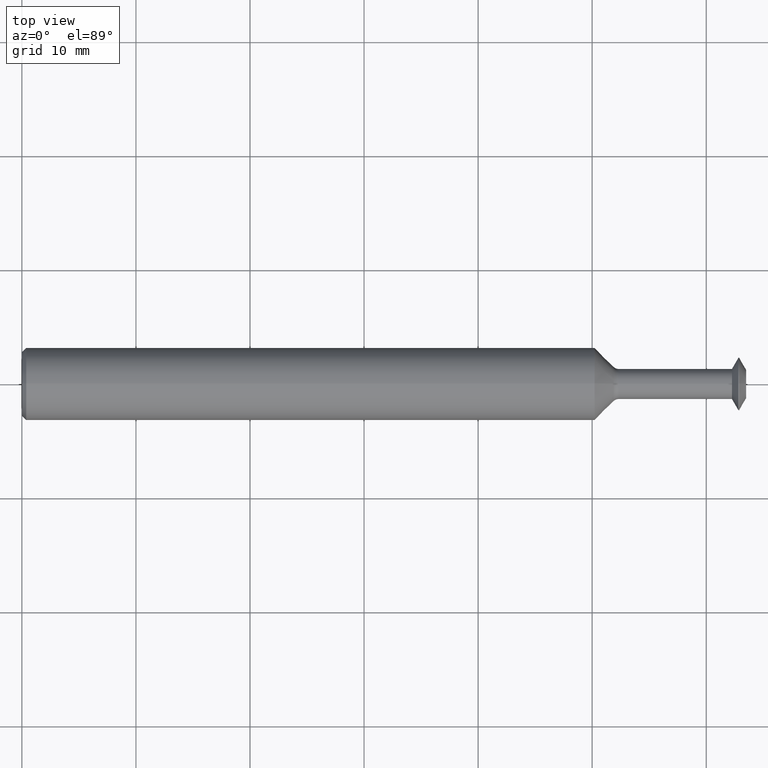
[diagram: clean part render]
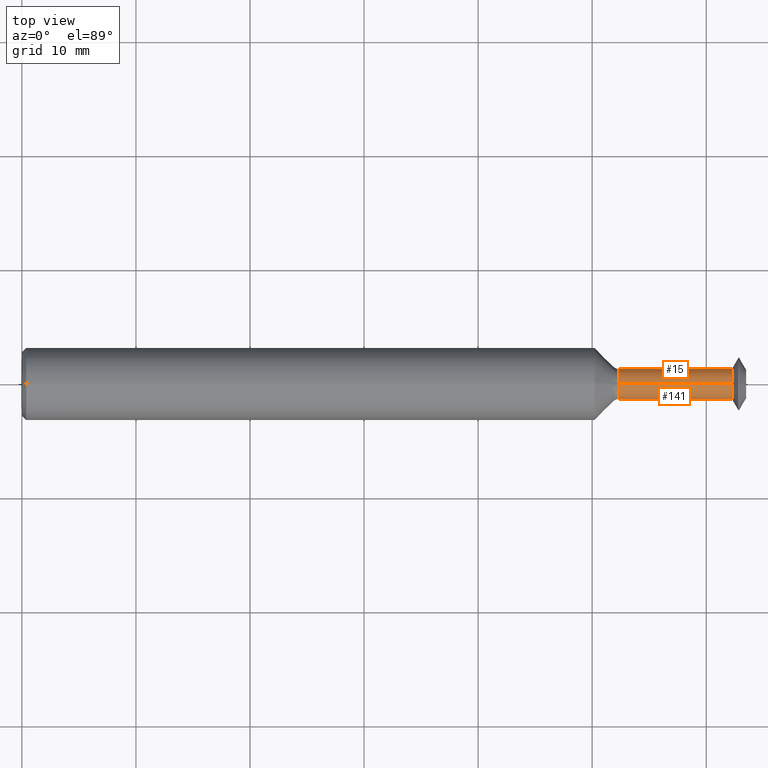
[diagram: same view with one multi-face feature highlighted, each face labeled with its STEP entity id]
A machine part, top view. The highlighted faces form ONE feature: a constant-radius fillet chain: 2 tangent blend faces with common blend radius 1.3208 mm. The faces share edges in the B-rep.
Their STEP definitions:
[1] entity #15 (Cylinder):
#2 = VERTEX_POINT ( 'NONE', #159 ) ;
#11 = DIRECTION ( 'NONE',  ( 0.0000000000000000000, 0.0000000000000000000, 1.000000000000000000 ) ) ;
#15 = ADVANCED_FACE ( 'NONE', ( #449 ), #332, .T. ) ;
#20 = VERTEX_POINT ( 'NONE', #122 ) ;
#38 = ORIENTED_EDGE ( 'NONE', *, *, #245, .F. ) ;
#72 = CARTESIAN_POINT ( 'NONE',  ( 2.451016945457063834, 0.0000000000000000000, 0.0000000000000000000 ) ) ;
#85 = DIRECTION ( 'NONE',  ( -1.000000000000000000, -0.0000000000000000000, -0.0000000000000000000 ) ) ;
#96 = VECTOR ( 'NONE', #226, 39.37007874015748143 ) ;
#102 = CARTESIAN_POINT ( 'NONE',  ( 0.0000000000000000000, 0.0000000000000000000, 0.0000000000000000000 ) ) ;
#110 = CARTESIAN_POINT ( 'NONE',  ( 2.060003014481508465, 0.0000000000000000000, 0.05200000000000015721 ) ) ;
#111 = VERTEX_POINT ( 'NONE', #331 ) ;
#115 = VECTOR ( 'NONE', #85, 39.37007874015748143 ) ;
#116 = DIRECTION ( 'NONE',  ( 0.0000000000000000000, 0.0000000000000000000, 1.000000000000000000 ) ) ;
#122 = CARTESIAN_POINT ( 'NONE',  ( 2.451016945457063834, 0.0000000000000000000, -0.05200000000000000455 ) ) ;
#139 = DIRECTION ( 'NONE',  ( -1.000000000000000000, -0.0000000000000000000, -0.0000000000000000000 ) ) ;
#154 = VERTEX_POINT ( 'NONE', #110 ) ;
#159 = CARTESIAN_POINT ( 'NONE',  ( 2.451016945457063834, 8.756224613903546798E-18, 0.05200000000000000455 ) ) ;
#167 = LINE ( 'NONE', #186, #96 ) ;
#186 = CARTESIAN_POINT ( 'NONE',  ( 0.0000000000000000000, 6.368163355566246458E-18, -0.05200000000000008088 ) ) ;
#189 = ORIENTED_EDGE ( 'NONE', *, *, #465, .F. ) ;
#210 = CARTESIAN_POINT ( 'NONE',  ( 2.060003014481508465, 0.0000000000000000000, 0.0000000000000000000 ) ) ;
#226 = DIRECTION ( 'NONE',  ( -1.000000000000000000, -0.0000000000000000000, -0.0000000000000000000 ) ) ;
#245 = EDGE_CURVE ( 'NONE', #154, #111, #384, .T. ) ;
#258 = LINE ( 'NONE', #498, #115 ) ;
#268 = DIRECTION ( 'NONE',  ( 0.0000000000000000000, 0.0000000000000000000, 1.000000000000000000 ) ) ;
#289 = AXIS2_PLACEMENT_3D ( 'NONE', #210, #437, #11 ) ;
#330 = EDGE_CURVE ( 'NONE', #2, #20, #408, .T. ) ;
#331 = CARTESIAN_POINT ( 'NONE',  ( 2.060003014481508465, 6.368163355566256473E-18, -0.05200000000000015721 ) ) ;
#332 = CYLINDRICAL_SURFACE ( 'NONE', #471, 0.05200000000000008088 ) ;
#334 = DIRECTION ( 'NONE',  ( -1.000000000000000000, -0.0000000000000000000, -0.0000000000000000000 ) ) ;
#345 = EDGE_CURVE ( 'NONE', #20, #111, #167, .T. ) ;
#352 = EDGE_LOOP ( 'NONE', ( #401, #411, #38, #189 ) ) ;
#384 = CIRCLE ( 'NONE', #289, 0.05200000000000015721 ) ;
#401 = ORIENTED_EDGE ( 'NONE', *, *, #330, .T. ) ;
#408 = CIRCLE ( 'NONE', #462, 0.05200000000000000455 ) ;
#411 = ORIENTED_EDGE ( 'NONE', *, *, #345, .T. ) ;
#437 = DIRECTION ( 'NONE',  ( -1.000000000000000000, -0.0000000000000000000, -0.0000000000000000000 ) ) ;
#449 = FACE_OUTER_BOUND ( 'NONE', #352, .T. ) ;
#462 = AXIS2_PLACEMENT_3D ( 'NONE', #72, #334, #116 ) ;
#465 = EDGE_CURVE ( 'NONE', #2, #154, #258, .T. ) ;
#471 = AXIS2_PLACEMENT_3D ( 'NONE', #102, #139, #268 ) ;
#498 = CARTESIAN_POINT ( 'NONE',  ( 0.0000000000000000000, 0.0000000000000000000, 0.05200000000000008088 ) ) ;
[2] entity #141 (Cylinder):
#2 = VERTEX_POINT ( 'NONE', #159 ) ;
#17 = DIRECTION ( 'NONE',  ( 0.0000000000000000000, 0.0000000000000000000, 1.000000000000000000 ) ) ;
#20 = VERTEX_POINT ( 'NONE', #122 ) ;
#21 = CARTESIAN_POINT ( 'NONE',  ( 2.060003014481508465, 0.0000000000000000000, 0.0000000000000000000 ) ) ;
#37 = AXIS2_PLACEMENT_3D ( 'NONE', #21, #391, #17 ) ;
#62 = FACE_OUTER_BOUND ( 'NONE', #205, .T. ) ;
#77 = CYLINDRICAL_SURFACE ( 'NONE', #214, 0.05200000000000008088 ) ;
#84 = AXIS2_PLACEMENT_3D ( 'NONE', #235, #486, #240 ) ;
#85 = DIRECTION ( 'NONE',  ( -1.000000000000000000, -0.0000000000000000000, -0.0000000000000000000 ) ) ;
#96 = VECTOR ( 'NONE', #226, 39.37007874015748143 ) ;
#110 = CARTESIAN_POINT ( 'NONE',  ( 2.060003014481508465, 0.0000000000000000000, 0.05200000000000015721 ) ) ;
#111 = VERTEX_POINT ( 'NONE', #331 ) ;
#115 = VECTOR ( 'NONE', #85, 39.37007874015748143 ) ;
#122 = CARTESIAN_POINT ( 'NONE',  ( 2.451016945457063834, 0.0000000000000000000, -0.05200000000000000455 ) ) ;
#128 = CIRCLE ( 'NONE', #37, 0.05200000000000015721 ) ;
#136 = CIRCLE ( 'NONE', #84, 0.05200000000000000455 ) ;
#141 = ADVANCED_FACE ( 'NONE', ( #62 ), #77, .T. ) ;
#154 = VERTEX_POINT ( 'NONE', #110 ) ;
#159 = CARTESIAN_POINT ( 'NONE',  ( 2.451016945457063834, 8.756224613903546798E-18, 0.05200000000000000455 ) ) ;
#167 = LINE ( 'NONE', #186, #96 ) ;
#170 = DIRECTION ( 'NONE',  ( -1.000000000000000000, -0.0000000000000000000, -0.0000000000000000000 ) ) ;
#178 = ORIENTED_EDGE ( 'NONE', *, *, #447, .T. ) ;
#181 = DIRECTION ( 'NONE',  ( 0.0000000000000000000, 0.0000000000000000000, 1.000000000000000000 ) ) ;
#186 = CARTESIAN_POINT ( 'NONE',  ( 0.0000000000000000000, 6.368163355566246458E-18, -0.05200000000000008088 ) ) ;
#205 = EDGE_LOOP ( 'NONE', ( #232, #178, #261, #439 ) ) ;
#214 = AXIS2_PLACEMENT_3D ( 'NONE', #413, #170, #181 ) ;
#226 = DIRECTION ( 'NONE',  ( -1.000000000000000000, -0.0000000000000000000, -0.0000000000000000000 ) ) ;
#232 = ORIENTED_EDGE ( 'NONE', *, *, #345, .F. ) ;
#235 = CARTESIAN_POINT ( 'NONE',  ( 2.451016945457063834, 0.0000000000000000000, 0.0000000000000000000 ) ) ;
#240 = DIRECTION ( 'NONE',  ( 0.0000000000000000000, 0.0000000000000000000, 1.000000000000000000 ) ) ;
#258 = LINE ( 'NONE', #498, #115 ) ;
#261 = ORIENTED_EDGE ( 'NONE', *, *, #465, .T. ) ;
#331 = CARTESIAN_POINT ( 'NONE',  ( 2.060003014481508465, 6.368163355566256473E-18, -0.05200000000000015721 ) ) ;
#345 = EDGE_CURVE ( 'NONE', #20, #111, #167, .T. ) ;
#391 = DIRECTION ( 'NONE',  ( -1.000000000000000000, -0.0000000000000000000, -0.0000000000000000000 ) ) ;
#403 = EDGE_CURVE ( 'NONE', #111, #154, #128, .T. ) ;
#413 = CARTESIAN_POINT ( 'NONE',  ( 0.0000000000000000000, 0.0000000000000000000, 0.0000000000000000000 ) ) ;
#439 = ORIENTED_EDGE ( 'NONE', *, *, #403, .F. ) ;
#447 = EDGE_CURVE ( 'NONE', #20, #2, #136, .T. ) ;
#465 = EDGE_CURVE ( 'NONE', #2, #154, #258, .T. ) ;
#486 = DIRECTION ( 'NONE',  ( -1.000000000000000000, -0.0000000000000000000, -0.0000000000000000000 ) ) ;
#498 = CARTESIAN_POINT ( 'NONE',  ( 0.0000000000000000000, 0.0000000000000000000, 0.05200000000000008088 ) ) ;